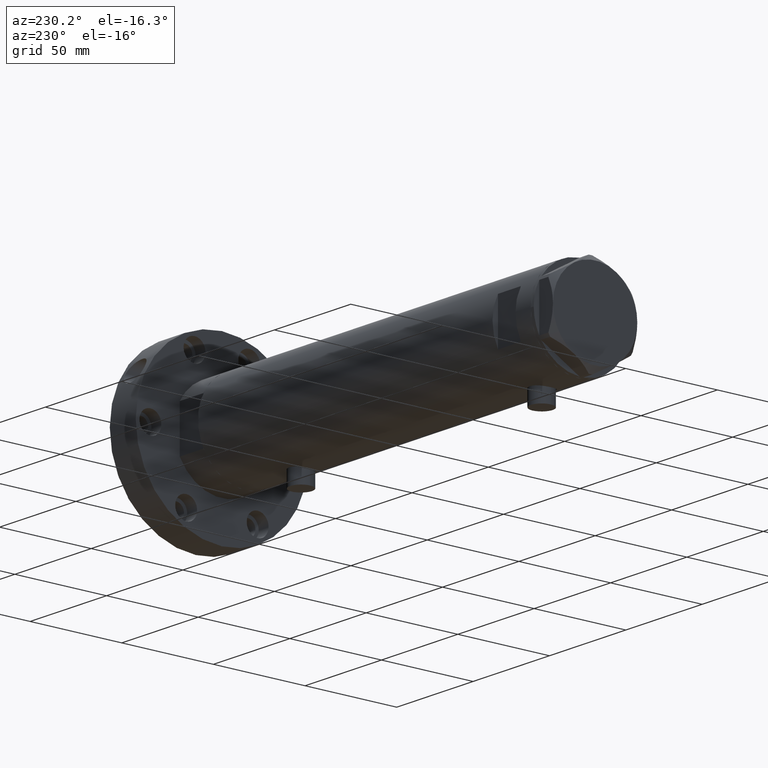
[diagram: clean part render]
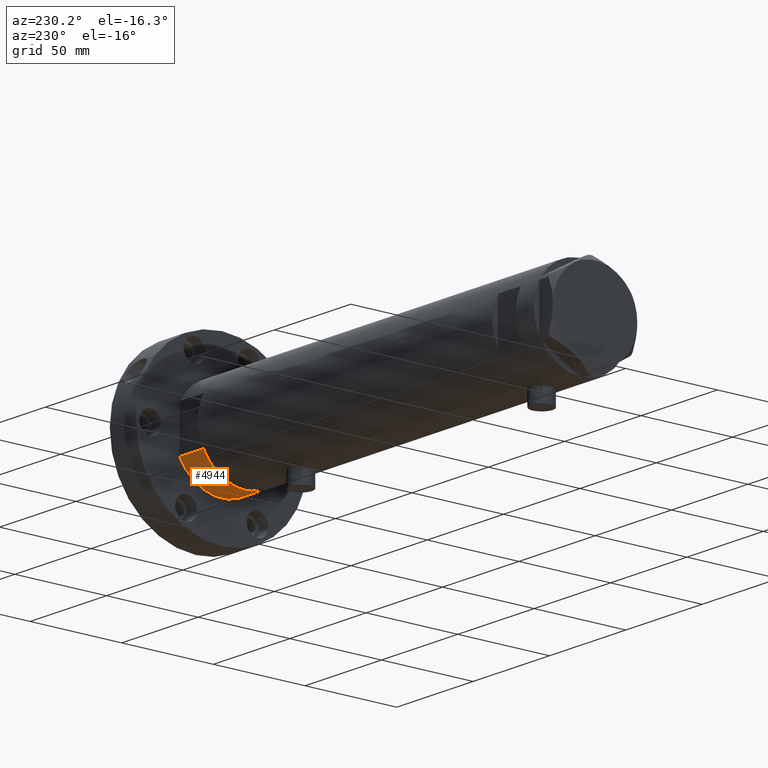
[diagram: same view with one face highlighted and labeled with its STEP entity id]
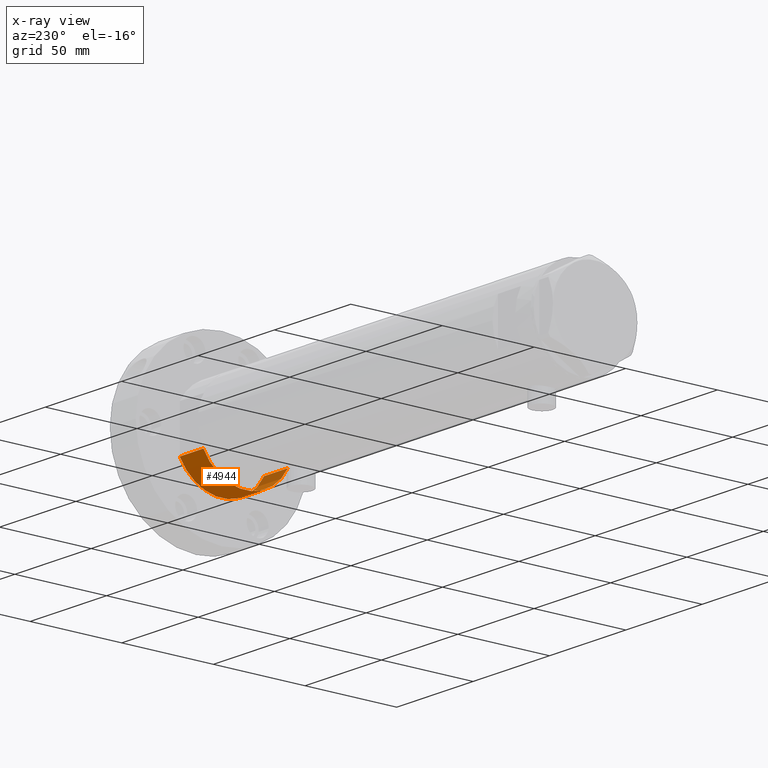
[diagram: x-ray of the same camera — body ghosted, the highlighted face saturated]
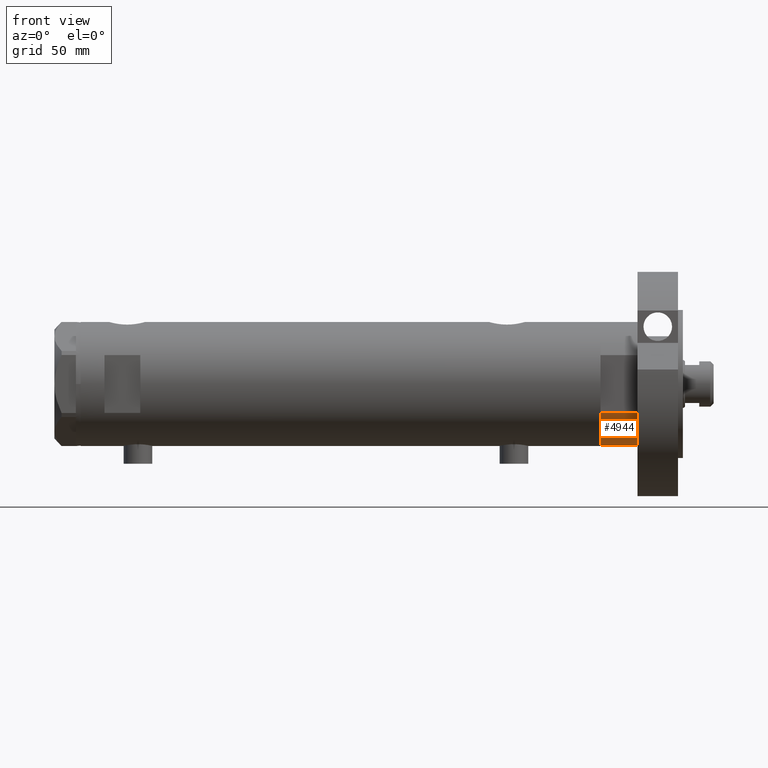
[diagram: same view with one face highlighted and labeled with its STEP entity id]
A machine part, auxiliary view. The second image highlights one B-rep face of the part: STEP entity #4944.
The next image is the same camera in x-ray: the body ghosted, the highlighted face saturated — about 11% of this face is hidden behind the body in this view.
A second angle (front view) of the same face is appended — the face is thin or edge-on in the first view.
In plain terms, the highlighted cylindrical surface (partial cylindrical patch) has radius 26 mm, axis along (-1, -0, 0).
Its self-contained STEP definition (entity closure, byte-faithful):
#211 = CYLINDRICAL_SURFACE ( 'NONE', #6209, 26.00000000000000355 ) ;
#653 = CARTESIAN_POINT ( 'NONE',  ( 12.12435565298215323, -22.99999999999999645, 15.50000000000000000 ) ) ;
#654 = ORIENTED_EDGE ( 'NONE', *, *, #2147, .F. ) ;
#668 = VECTOR ( 'NONE', #3923, 1000.000000000000000 ) ;
#739 = CIRCLE ( 'NONE', #4505, 26.00000000000000355 ) ;
#815 = DIRECTION ( 'NONE',  ( -0.000000000000000000, -0.000000000000000000, 1.000000000000000000 ) ) ;
#848 = DIRECTION ( 'NONE',  ( -1.000000000000000000, 0.000000000000000000, 0.000000000000000000 ) ) ;
#1347 = DIRECTION ( 'NONE',  ( 0.000000000000000000, 0.000000000000000000, 1.000000000000000000 ) ) ;
#1863 = CARTESIAN_POINT ( 'NONE',  ( 12.12435565298214790, 23.00000000000000355, 15.50000000000000000 ) ) ;
#1958 = CARTESIAN_POINT ( 'NONE',  ( 12.12435565298215323, 23.00000000000000355, 0.000000000000000000 ) ) ;
#1978 = VERTEX_POINT ( 'NONE', #2861 ) ;
#2147 = EDGE_CURVE ( 'NONE', #5476, #5610, #3253, .T. ) ;
#2293 = VECTOR ( 'NONE', #815, 1000.000000000000000 ) ;
#2343 = EDGE_CURVE ( 'NONE', #5476, #1978, #3340, .T. ) ;
#2799 = AXIS2_PLACEMENT_3D ( 'NONE', #3324, #1347, #5458 ) ;
#2824 = ORIENTED_EDGE ( 'NONE', *, *, #3217, .F. ) ;
#2861 = CARTESIAN_POINT ( 'NONE',  ( 12.12435565298214080, 23.00000000000000355, 0.000000000000000000 ) ) ;
#2939 = DIRECTION ( 'NONE',  ( 0.000000000000000000, 0.000000000000000000, 1.000000000000000000 ) ) ;
#3217 = EDGE_CURVE ( 'NONE', #5610, #5807, #739, .T. ) ;
#3253 = LINE ( 'NONE', #5801, #2293 ) ;
#3324 = CARTESIAN_POINT ( 'NONE',  ( 0.000000000000000000, 0.000000000000000000, 0.000000000000000000 ) ) ;
#3340 = CIRCLE ( 'NONE', #2799, 26.00000000000000355 ) ;
#3456 = CARTESIAN_POINT ( 'NONE',  ( 12.12435565298215323, -22.99999999999999645, 0.000000000000000000 ) ) ;
#3831 = CARTESIAN_POINT ( 'NONE',  ( 0.000000000000000000, 0.000000000000000000, 15.50000000000000000 ) ) ;
#3923 = DIRECTION ( 'NONE',  ( -0.000000000000000000, -0.000000000000000000, 1.000000000000000000 ) ) ;
#4505 = AXIS2_PLACEMENT_3D ( 'NONE', #5979, #2939, #6015 ) ;
#4944 = ADVANCED_FACE ( 'NONE', ( #6220 ), #211, .T. ) ;
#5127 = EDGE_LOOP ( 'NONE', ( #2824, #654, #6252, #6208 ) ) ;
#5315 = DIRECTION ( 'NONE',  ( -0.000000000000000000, -0.000000000000000000, -1.000000000000000000 ) ) ;
#5458 = DIRECTION ( 'NONE',  ( 1.000000000000000000, 0.000000000000000000, 0.000000000000000000 ) ) ;
#5476 = VERTEX_POINT ( 'NONE', #3456 ) ;
#5610 = VERTEX_POINT ( 'NONE', #653 ) ;
#5801 = CARTESIAN_POINT ( 'NONE',  ( 12.12435565298215323, -22.99999999999999645, 0.000000000000000000 ) ) ;
#5807 = VERTEX_POINT ( 'NONE', #1863 ) ;
#5979 = CARTESIAN_POINT ( 'NONE',  ( 0.000000000000000000, 0.000000000000000000, 15.50000000000000000 ) ) ;
#6015 = DIRECTION ( 'NONE',  ( 1.000000000000000000, 0.000000000000000000, 0.000000000000000000 ) ) ;
#6075 = EDGE_CURVE ( 'NONE', #1978, #5807, #6445, .T. ) ;
#6208 = ORIENTED_EDGE ( 'NONE', *, *, #6075, .T. ) ;
#6209 = AXIS2_PLACEMENT_3D ( 'NONE', #3831, #5315, #848 ) ;
#6220 = FACE_OUTER_BOUND ( 'NONE', #5127, .T. ) ;
#6252 = ORIENTED_EDGE ( 'NONE', *, *, #2343, .T. ) ;
#6445 = LINE ( 'NONE', #1958, #668 ) ;